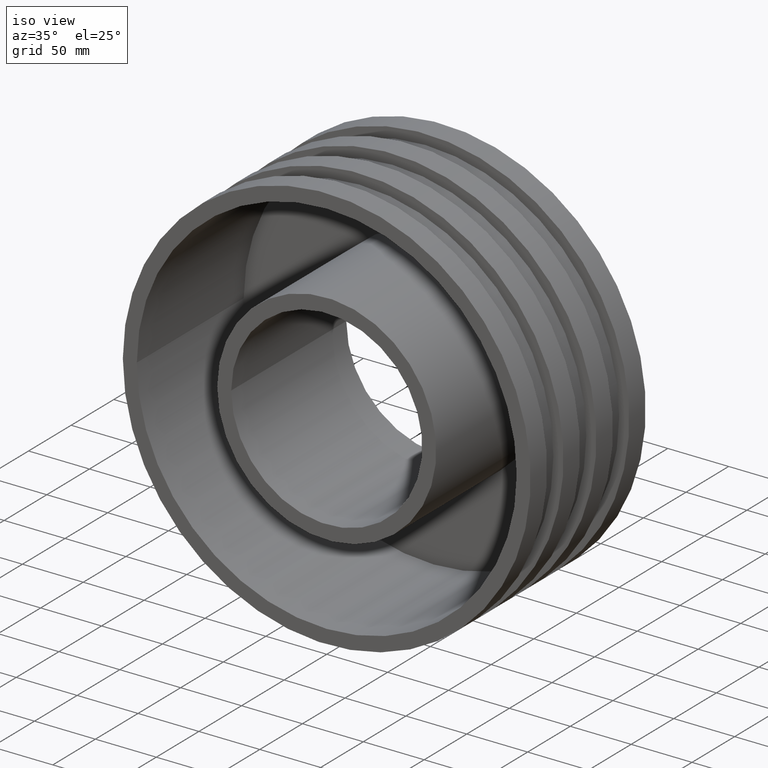
[diagram: clean part render]
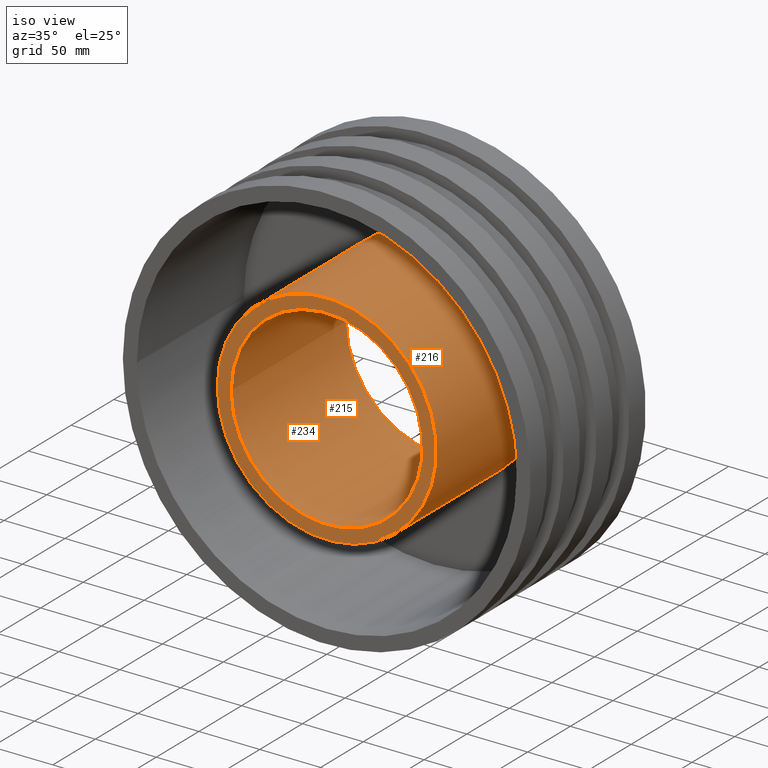
[diagram: same view with one multi-face feature highlighted, each face labeled with its STEP entity id]
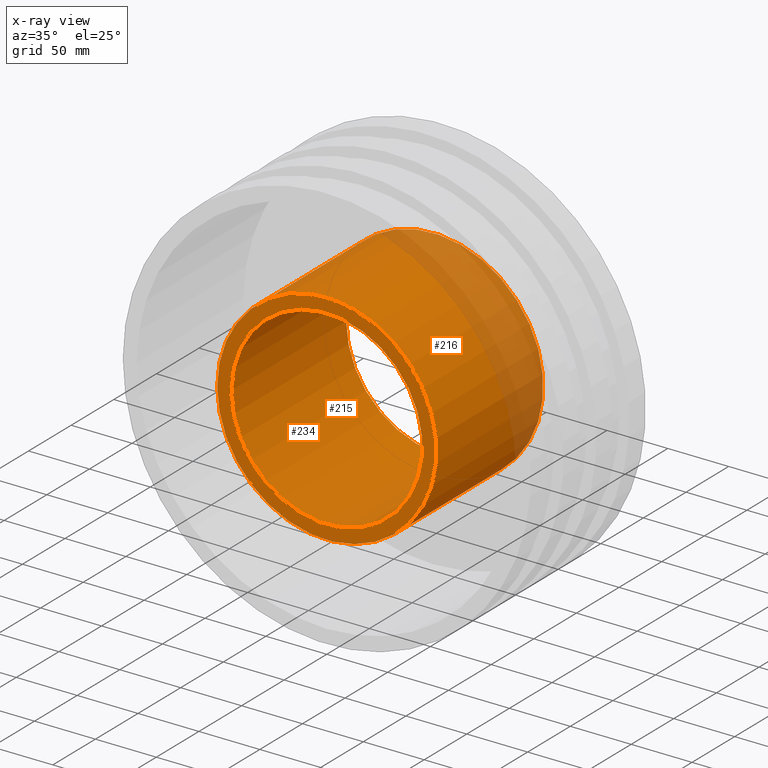
[diagram: x-ray of the same camera — body ghosted, the whole feature saturated]
A machine part, iso view. The highlighted faces form ONE feature: a stepped (counterbored) hole: 2 coaxial cylindrical walls of radii 78.5 -> 90 mm joined by 1 annular planar shoulder face(s). The faces share edges in the B-rep.
The next image is the same camera in x-ray: the body ghosted and the whole hole feature saturated, so the bore chain is visible through the body.
Their STEP definitions:
[1] entity #216 (Cylinder):
#15=CYLINDRICAL_SURFACE('',#240,90.);
#26=FACE_BOUND('',#68,.T.);
#46=FACE_OUTER_BOUND('',#67,.T.);
#67=EDGE_LOOP('',(#167));
#68=EDGE_LOOP('',(#168));
#105=CIRCLE('',#238,90.);
#107=CIRCLE('',#241,90.);
#125=VERTEX_POINT('',#361);
#127=VERTEX_POINT('',#366);
#145=EDGE_CURVE('',#125,#125,#105,.T.);
#147=EDGE_CURVE('',#127,#127,#107,.T.);
#167=ORIENTED_EDGE('',*,*,#145,.T.);
#168=ORIENTED_EDGE('',*,*,#147,.F.);
#216=ADVANCED_FACE('',(#46,#26),#15,.T.);
#238=AXIS2_PLACEMENT_3D('',#362,#281,#282);
#240=AXIS2_PLACEMENT_3D('',#365,#285,#286);
#241=AXIS2_PLACEMENT_3D('',#367,#287,#288);
#281=DIRECTION('center_axis',(0.,1.,0.));
#282=DIRECTION('ref_axis',(1.,0.,0.));
#285=DIRECTION('center_axis',(0.,1.,0.));
#286=DIRECTION('ref_axis',(-1.,0.,0.));
#287=DIRECTION('center_axis',(0.,1.,0.));
#288=DIRECTION('ref_axis',(1.,0.,0.));
#361=CARTESIAN_POINT('',(-90.,0.,0.));
#362=CARTESIAN_POINT('Origin',(0.,0.,0.));
#365=CARTESIAN_POINT('Origin',(0.,62.6785714285714,0.));
#366=CARTESIAN_POINT('',(-90.,125.357142857143,0.));
#367=CARTESIAN_POINT('Origin',(0.,125.357142857143,0.));
[2] entity #234 (Cylinder):
#24=CYLINDRICAL_SURFACE('',#276,78.5);
#44=FACE_BOUND('',#104,.T.);
#64=FACE_OUTER_BOUND('',#103,.T.);
#103=EDGE_LOOP('',(#203));
#104=EDGE_LOOP('',(#204));
#106=CIRCLE('',#239,78.5);
#124=CIRCLE('',#275,78.5);
#126=VERTEX_POINT('',#363);
#144=VERTEX_POINT('',#417);
#146=EDGE_CURVE('',#126,#126,#106,.T.);
#164=EDGE_CURVE('',#144,#144,#124,.T.);
#203=ORIENTED_EDGE('',*,*,#164,.T.);
#204=ORIENTED_EDGE('',*,*,#146,.F.);
#234=ADVANCED_FACE('',(#64,#44),#24,.F.);
#239=AXIS2_PLACEMENT_3D('',#364,#283,#284);
#275=AXIS2_PLACEMENT_3D('',#418,#355,#356);
#276=AXIS2_PLACEMENT_3D('',#419,#357,#358);
#283=DIRECTION('center_axis',(0.,1.,0.));
#284=DIRECTION('ref_axis',(1.,0.,0.));
#355=DIRECTION('center_axis',(0.,1.,0.));
#356=DIRECTION('ref_axis',(1.,0.,0.));
#357=DIRECTION('center_axis',(0.,1.,0.));
#358=DIRECTION('ref_axis',(-1.,0.,0.));
#363=CARTESIAN_POINT('',(-78.5,0.,0.));
#364=CARTESIAN_POINT('Origin',(0.,0.,0.));
#417=CARTESIAN_POINT('',(-78.5,135.,0.));
#418=CARTESIAN_POINT('Origin',(0.,135.,0.));
#419=CARTESIAN_POINT('Origin',(0.,67.5,0.));
[3] entity #215 (Plane):
#25=FACE_BOUND('',#66,.T.);
#45=FACE_OUTER_BOUND('',#65,.T.);
#65=EDGE_LOOP('',(#165));
#66=EDGE_LOOP('',(#166));
#105=CIRCLE('',#238,90.);
#106=CIRCLE('',#239,78.5);
#125=VERTEX_POINT('',#361);
#126=VERTEX_POINT('',#363);
#145=EDGE_CURVE('',#125,#125,#105,.T.);
#146=EDGE_CURVE('',#126,#126,#106,.T.);
#165=ORIENTED_EDGE('',*,*,#145,.F.);
#166=ORIENTED_EDGE('',*,*,#146,.T.);
#205=PLANE('',#237);
#215=ADVANCED_FACE('',(#45,#25),#205,.T.);
#237=AXIS2_PLACEMENT_3D('',#360,#279,#280);
#238=AXIS2_PLACEMENT_3D('',#362,#281,#282);
#239=AXIS2_PLACEMENT_3D('',#364,#283,#284);
#279=DIRECTION('center_axis',(0.,-1.,0.));
#280=DIRECTION('ref_axis',(0.,0.,-1.));
#281=DIRECTION('center_axis',(0.,1.,0.));
#282=DIRECTION('ref_axis',(1.,0.,0.));
#283=DIRECTION('center_axis',(0.,1.,0.));
#284=DIRECTION('ref_axis',(1.,0.,0.));
#360=CARTESIAN_POINT('Origin',(-90.,0.,0.));
#361=CARTESIAN_POINT('',(-90.,0.,0.));
#362=CARTESIAN_POINT('Origin',(0.,0.,0.));
#363=CARTESIAN_POINT('',(-78.5,0.,0.));
#364=CARTESIAN_POINT('Origin',(0.,0.,0.));